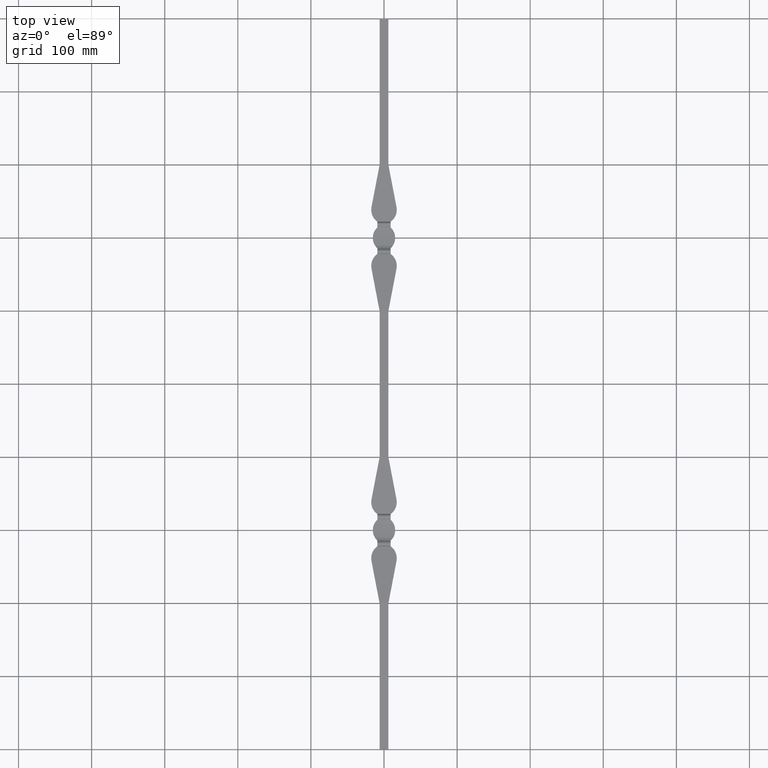
[diagram: clean part render]
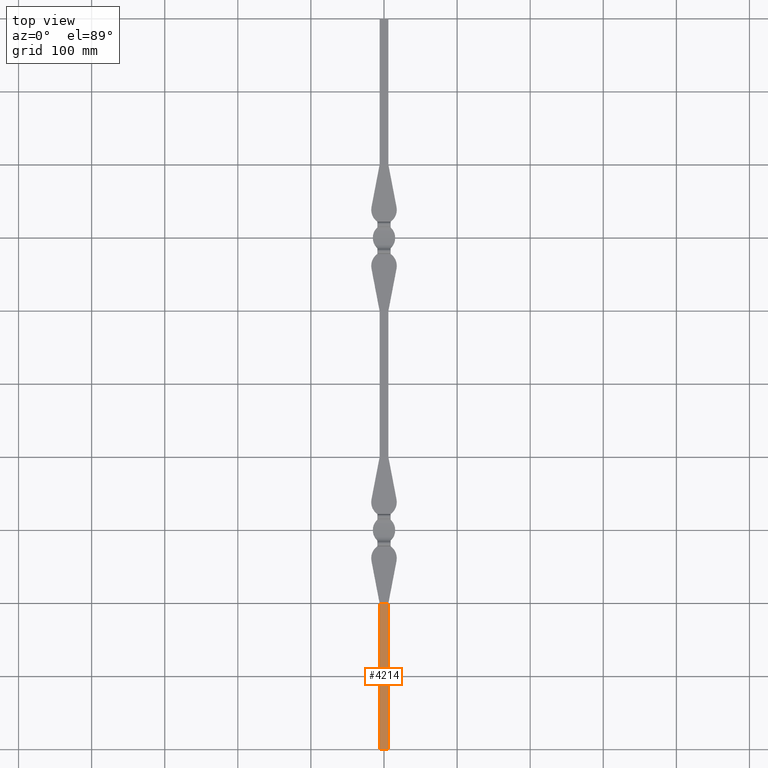
[diagram: same view with one face highlighted and labeled with its STEP entity id]
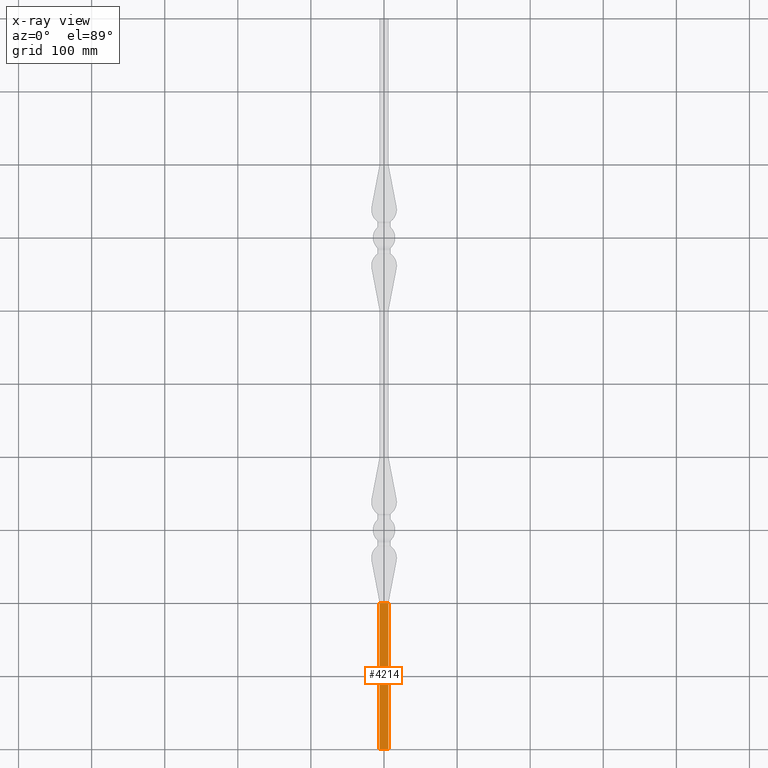
[diagram: x-ray of the same camera — body ghosted, the highlighted face saturated]
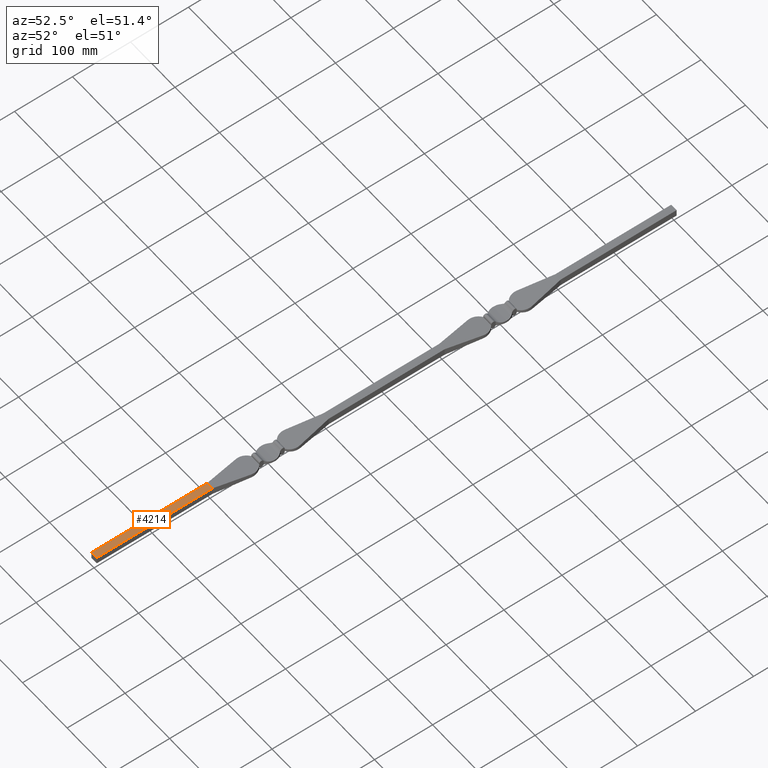
[diagram: same view with one face highlighted and labeled with its STEP entity id]
A machine part, top view. The second image highlights one B-rep face of the part: STEP entity #4214.
The next image is the same camera in x-ray: the body ghosted, the highlighted face saturated — about 0% of this face is hidden behind the body in this view.
A second angle (auxiliary view) of the same face is appended — the face is thin or edge-on in the first view.
In plain terms, the highlighted planar face has unit normal (-0, 0, -1).
Its self-contained STEP definition (entity closure, byte-faithful):
#425 = AXIS2_PLACEMENT_3D ( 'NONE', #480, #9788, #3524 ) ;
#480 = CARTESIAN_POINT ( 'NONE',  ( -6.000000000000000000, -1016.970562748477050, 6.000000000000000000 ) ) ;
#848 = VECTOR ( 'NONE', #8206, 1000.000000000000000 ) ;
#1024 = FACE_OUTER_BOUND ( 'NONE', #11230, .T. ) ;
#1037 = ORIENTED_EDGE ( 'NONE', *, *, #8707, .F. ) ;
#1646 = DIRECTION ( 'NONE',  ( -0.000000000000000000, 1.000000000000000000, -0.000000000000000000 ) ) ;
#1956 = LINE ( 'NONE', #4216, #7202 ) ;
#2801 = CARTESIAN_POINT ( 'NONE',  ( -6.000000000000000000, -700.0000000000000000, 6.000000000000000000 ) ) ;
#2984 = ORIENTED_EDGE ( 'NONE', *, *, #12253, .F. ) ;
#3304 = VECTOR ( 'NONE', #1646, 1000.000000000000000 ) ;
#3524 = DIRECTION ( 'NONE',  ( -1.000000000000000000, -0.000000000000000000, 0.000000000000000000 ) ) ;
#3528 = CARTESIAN_POINT ( 'NONE',  ( -6.000000000000000000, -500.0000000000000000, 6.000000000000000000 ) ) ;
#3792 = EDGE_CURVE ( 'NONE', #10770, #5995, #8539, .T. ) ;
#4214 = ADVANCED_FACE ( 'NONE', ( #1024 ), #11665, .F. ) ;
#4216 = CARTESIAN_POINT ( 'NONE',  ( -6.000000000000000000, -500.0000000000000000, 6.000000000000000000 ) ) ;
#4537 = CARTESIAN_POINT ( 'NONE',  ( 6.000000000000000000, -700.0000000000000000, 6.000000000000000000 ) ) ;
#4692 = DIRECTION ( 'NONE',  ( -0.000000000000000000, 1.000000000000000000, -0.000000000000000000 ) ) ;
#4933 = EDGE_CURVE ( 'NONE', #12198, #10770, #10964, .T. ) ;
#5063 = ORIENTED_EDGE ( 'NONE', *, *, #3792, .T. ) ;
#5995 = VERTEX_POINT ( 'NONE', #9538 ) ;
#6816 = CARTESIAN_POINT ( 'NONE',  ( 6.000000000000000000, -1016.970562748477050, 6.000000000000000000 ) ) ;
#7202 = VECTOR ( 'NONE', #7418, 1000.000000000000000 ) ;
#7418 = DIRECTION ( 'NONE',  ( 1.000000000000000000, 0.000000000000000000, 0.000000000000000000 ) ) ;
#7829 = ORIENTED_EDGE ( 'NONE', *, *, #4933, .T. ) ;
#8206 = DIRECTION ( 'NONE',  ( 1.000000000000000000, 0.000000000000000000, 0.000000000000000000 ) ) ;
#8539 = LINE ( 'NONE', #6816, #3304 ) ;
#8707 = EDGE_CURVE ( 'NONE', #8816, #5995, #1956, .T. ) ;
#8816 = VERTEX_POINT ( 'NONE', #3528 ) ;
#9538 = CARTESIAN_POINT ( 'NONE',  ( 6.000000000000000000, -500.0000000000000000, 6.000000000000000000 ) ) ;
#9788 = DIRECTION ( 'NONE',  ( -0.000000000000000000, 0.000000000000000000, -1.000000000000000000 ) ) ;
#10770 = VERTEX_POINT ( 'NONE', #4537 ) ;
#10964 = LINE ( 'NONE', #2801, #848 ) ;
#11002 = LINE ( 'NONE', #11047, #12328 ) ;
#11047 = CARTESIAN_POINT ( 'NONE',  ( -6.000000000000000000, -1016.970562748477050, 6.000000000000000000 ) ) ;
#11230 = EDGE_LOOP ( 'NONE', ( #5063, #1037, #2984, #7829 ) ) ;
#11665 = PLANE ( 'NONE',  #425 ) ;
#12198 = VERTEX_POINT ( 'NONE', #13037 ) ;
#12253 = EDGE_CURVE ( 'NONE', #12198, #8816, #11002, .T. ) ;
#12328 = VECTOR ( 'NONE', #4692, 1000.000000000000000 ) ;
#13037 = CARTESIAN_POINT ( 'NONE',  ( -6.000000000000000000, -700.0000000000000000, 6.000000000000000000 ) ) ;